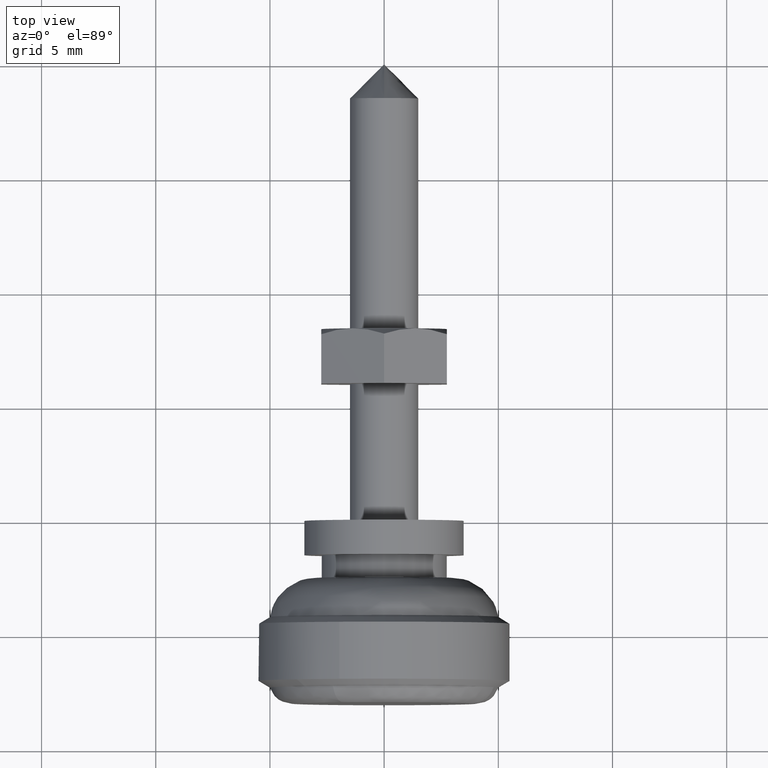
[diagram: clean part render]
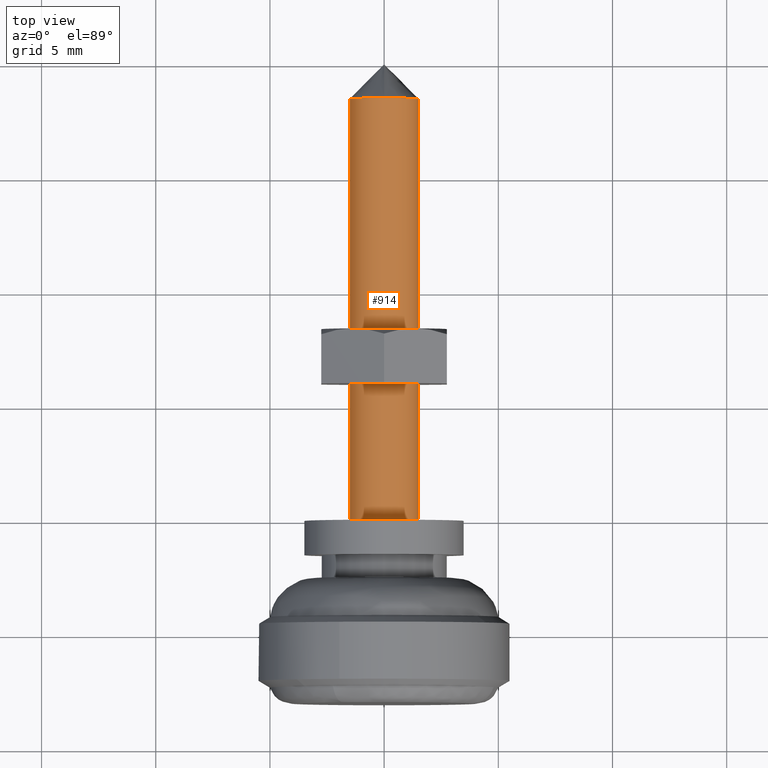
[diagram: same view with one face highlighted and labeled with its STEP entity id]
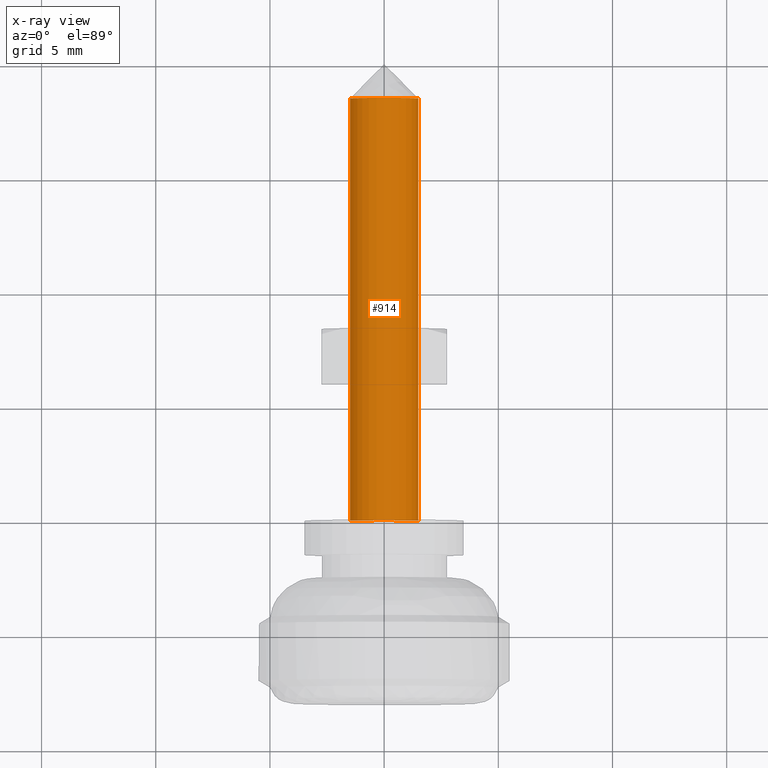
[diagram: x-ray of the same camera — body ghosted, the highlighted face saturated]
A machine part, top view. The second image highlights one B-rep face of the part: STEP entity #914.
The next image is the same camera in x-ray: the body ghosted, the highlighted face saturated — about 0% of this face is hidden behind the body in this view.
In plain terms, the highlighted face is a freeform B-spline surface patch.
Its self-contained STEP definition (entity closure, byte-faithful):
#751=CARTESIAN_POINT('',(18.500000000000000,1.489514289541224,0.177051352021105));
#752=VERTEX_POINT('',#751);
#770=CARTESIAN_POINT('',(18.500000000000000,-1.497202197631775,-0.091572809319045));
#771=VERTEX_POINT('',#770);
#785=CARTESIAN_POINT('',(-1.387779E-016,-1.497202197631775,-0.091572809319045));
#786=VERTEX_POINT('',#785);
#787=CARTESIAN_POINT('',(18.500000000000000,-1.497202197631775,-0.091572809319045));
#788=CARTESIAN_POINT('',(-1.387779E-016,-1.497202197631775,-0.091572809319045));
#789=QUASI_UNIFORM_CURVE('',1,(#787,#788),.UNSPECIFIED.,.F.,.U.);
#790=EDGE_CURVE('',#771,#786,#789,.T.);
#807=CARTESIAN_POINT('',(-1.419714E-016,1.489514289541224,0.177051352021105));
#808=VERTEX_POINT('',#807);
#824=CARTESIAN_POINT('',(18.500000000000000,1.489514289541224,0.177051352021105));
#825=CARTESIAN_POINT('',(-1.419714E-016,1.489514289541224,0.177051352021105));
#826=QUASI_UNIFORM_CURVE('',1,(#824,#825),.UNSPECIFIED.,.F.,.U.);
#827=EDGE_CURVE('',#752,#808,#826,.T.);
#832=CARTESIAN_POINT('',(18.962500000000009,-1.497202197632800,-0.091572809302285));
#833=CARTESIAN_POINT('',(18.962500000000016,-1.588775006935085,1.405629388330515));
#834=CARTESIAN_POINT('',(18.962500000000009,-0.091572809302285,1.497202197632800));
#835=CARTESIAN_POINT('',(18.962500000000009,1.322315236259252,1.583679295098791));
#836=CARTESIAN_POINT('',(18.962500000000009,1.489514289545500,0.177051351985138));
#837=CARTESIAN_POINT('',(-0.474062499999999,-1.497202197632800,-0.091572809302285));
#838=CARTESIAN_POINT('',(-0.474062499999999,-1.588775006935085,1.405629388330515));
#839=CARTESIAN_POINT('',(-0.474062499999999,-0.091572809302285,1.497202197632800));
#840=CARTESIAN_POINT('',(-0.474062499999999,1.322315236259252,1.583679295098791));
#841=CARTESIAN_POINT('',(-0.474062499999999,1.489514289545500,0.177051351985138));
#849=(BOUNDED_SURFACE()B_SPLINE_SURFACE(2,1,((#832,#837),(#833,#838),(#834,#839),(#835,#840),(#836,#841)),.UNSPECIFIED.,.F.,.F.,.U.)B_SPLINE_SURFACE_WITH_KNOTS((3,2,3),(2,2),(0.0,1.570796326794897,3.078760800517997),(0.0,19.436562500000012),.UNSPECIFIED.)GEOMETRIC_REPRESENTATION_ITEM()RATIONAL_B_SPLINE_SURFACE(((1.0,1.0),(0.707106781186548,0.707106781186548),(1.0,1.0),(0.718822509939086,0.718822509939086),(0.977505800795127,0.977505800795127)))REPRESENTATION_ITEM('')SURFACE());
#850=CARTESIAN_POINT('',(18.500000000000011,0.0,1.500000000000006));
#851=VERTEX_POINT('',#850);
#852=CARTESIAN_POINT('',(18.500000000000000,0.0,1.500000000000000));
#853=CARTESIAN_POINT('',(18.499999999999996,1.332261788862259,1.500000000000001));
#854=CARTESIAN_POINT('',(18.500000000000007,1.489514289541225,0.177051352021105));
#862=(BOUNDED_CURVE()B_SPLINE_CURVE(2,(#852,#853,#854),.UNSPECIFIED.,.F.,.U.)B_SPLINE_CURVE_WITH_KNOTS((3,3),(0.0,0.459124947014965),.UNSPECIFIED.)CURVE()GEOMETRIC_REPRESENTATION_ITEM()RATIONAL_B_SPLINE_CURVE((1.0,0.731050832862462,0.956026754171888))REPRESENTATION_ITEM(''));
#863=EDGE_CURVE('',#851,#752,#862,.T.);
#864=ORIENTED_EDGE('',*,*,#863,.T.);
#865=ORIENTED_EDGE('',*,*,#827,.T.);
#866=CARTESIAN_POINT('',(0.0,0.0,1.500000000000000));
#867=VERTEX_POINT('',#866);
#868=CARTESIAN_POINT('',(0.0,0.0,1.500000000000000));
#869=CARTESIAN_POINT('',(0.0,1.332261788862259,1.500000000000001));
#870=CARTESIAN_POINT('',(-1.419714E-016,1.489514289541225,0.177051352021105));
#878=(BOUNDED_CURVE()B_SPLINE_CURVE(2,(#868,#869,#870),.UNSPECIFIED.,.F.,.U.)B_SPLINE_CURVE_WITH_KNOTS((3,3),(0.0,0.229562473507482),.UNSPECIFIED.)CURVE()GEOMETRIC_REPRESENTATION_ITEM()RATIONAL_B_SPLINE_CURVE((1.0,0.731050832862462,0.956026754171888))REPRESENTATION_ITEM(''));
#879=EDGE_CURVE('',#867,#808,#878,.T.);
#880=ORIENTED_EDGE('',*,*,#879,.F.);
#881=CARTESIAN_POINT('',(-1.387779E-016,-1.497202197631775,-0.091572809319045));
#882=CARTESIAN_POINT('',(0.0,-1.500000000000000,-0.045829144964690));
#883=CARTESIAN_POINT('',(0.0,-1.500000000000000,0.0));
#884=CARTESIAN_POINT('',(0.0,-1.500000000000000,1.500000000000000));
#885=CARTESIAN_POINT('',(0.0,0.0,1.500000000000000));
#893=(BOUNDED_CURVE()B_SPLINE_CURVE(2,(#881,#882,#883,#884,#885),.UNSPECIFIED.,.F.,.U.)B_SPLINE_CURVE_WITH_KNOTS((3,2,3),(0.739332962238105,0.750000000000000,1.0),.UNSPECIFIED.)CURVE()GEOMETRIC_REPRESENTATION_ITEM()RATIONAL_B_SPLINE_CURVE((0.976072041664923,0.987502787898856,1.0,0.707106781186548,1.0))REPRESENTATION_ITEM(''));
#894=EDGE_CURVE('',#786,#867,#893,.T.);
#895=ORIENTED_EDGE('',*,*,#894,.F.);
#896=ORIENTED_EDGE('',*,*,#790,.F.);
#897=CARTESIAN_POINT('',(18.500000000000004,-1.497202197631775,-0.091572809319045));
#898=CARTESIAN_POINT('',(18.500000000000000,-1.500000000000000,-0.045829144964690));
#899=CARTESIAN_POINT('',(18.500000000000000,-1.500000000000000,0.0));
#900=CARTESIAN_POINT('',(18.500000000000000,-1.500000000000000,1.500000000000000));
#901=CARTESIAN_POINT('',(18.500000000000000,0.0,1.500000000000000));
#909=(BOUNDED_CURVE()B_SPLINE_CURVE(2,(#897,#898,#899,#900,#901),.UNSPECIFIED.,.F.,.U.)B_SPLINE_CURVE_WITH_KNOTS((3,2,3),(0.478665924476211,0.500000000000000,1.0),.UNSPECIFIED.)CURVE()GEOMETRIC_REPRESENTATION_ITEM()RATIONAL_B_SPLINE_CURVE((0.976072041664923,0.987502787898856,1.0,0.707106781186548,1.0))REPRESENTATION_ITEM(''));
#910=EDGE_CURVE('',#771,#851,#909,.T.);
#911=ORIENTED_EDGE('',*,*,#910,.T.);
#912=EDGE_LOOP('',(#864,#865,#880,#895,#896,#911));
#913=FACE_OUTER_BOUND('',#912,.T.);
#914=ADVANCED_FACE('',(#913),#849,.T.);